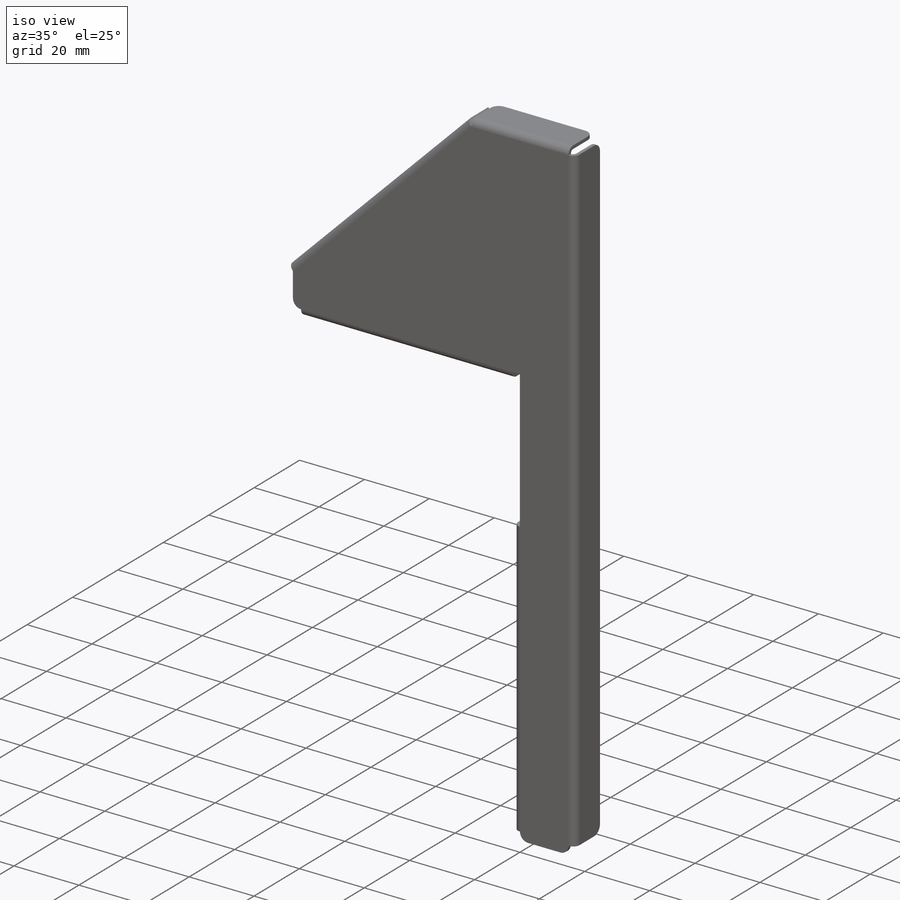
[diagram: iso view]
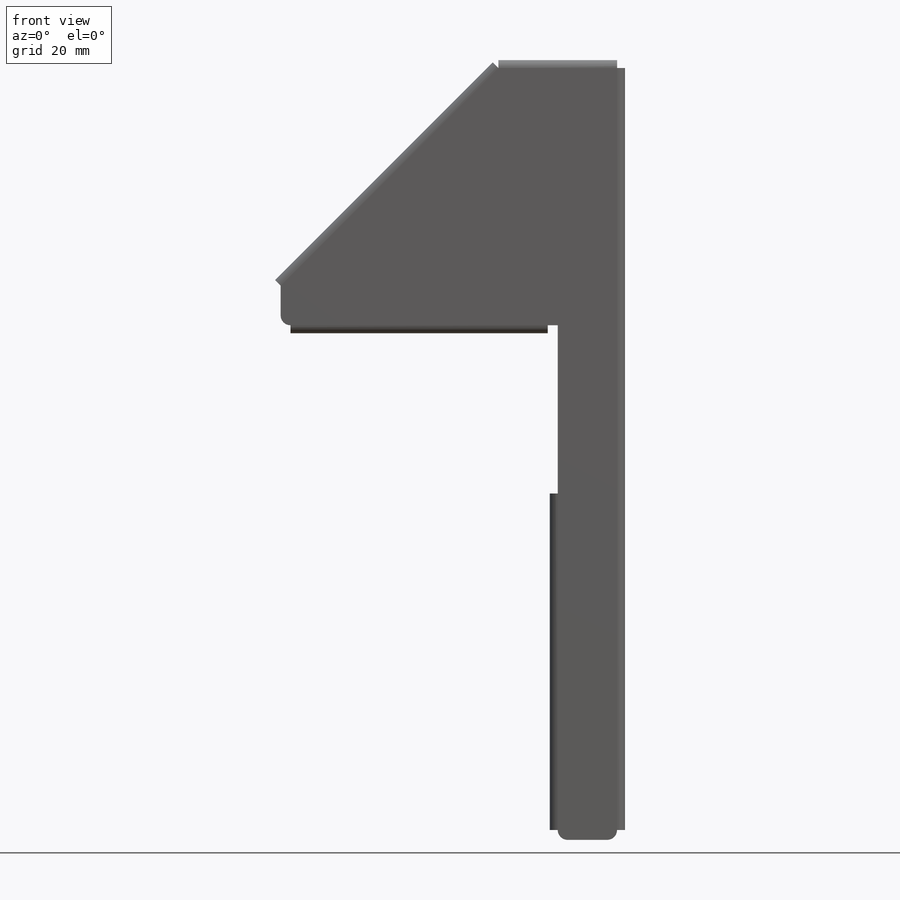
[diagram: front view]
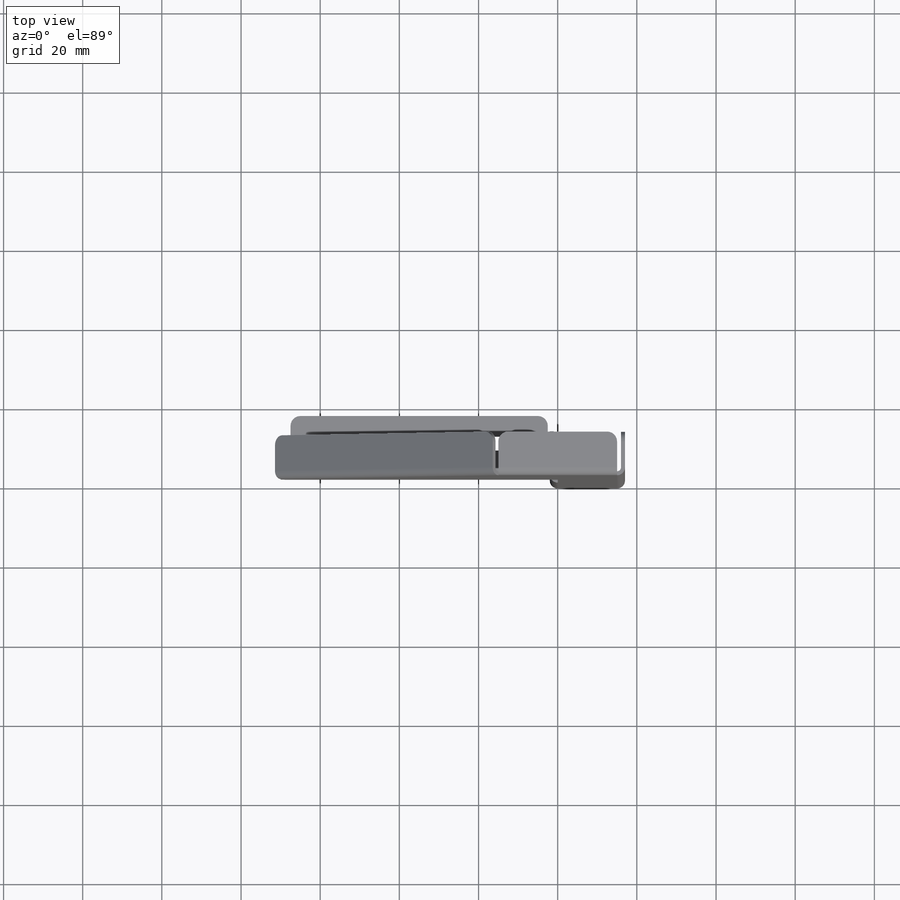
[diagram: top view]
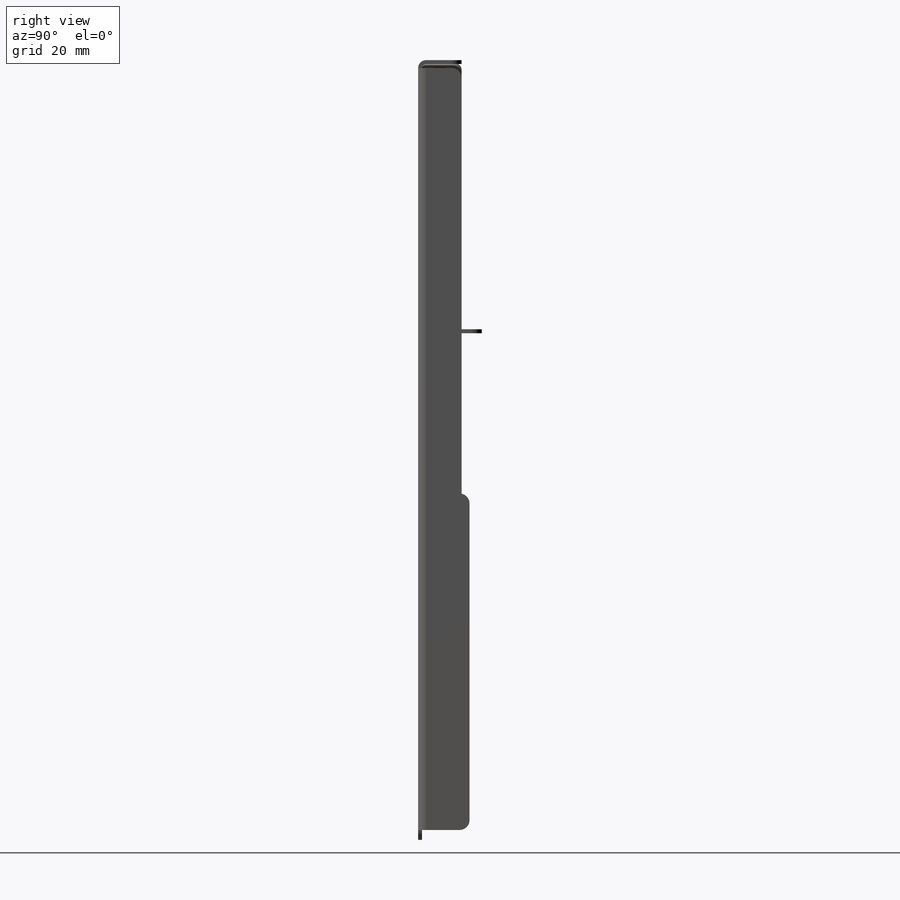
[diagram: right view]
SOLIDWORKS PART (.sldprt)
format: sldprt  version: not decoded by parser v0  size: 842,240 bytes
history: native  units: mm
features: sheet_metal_op x10, sketch x9, material x1, cut_extrude x1 + 5 further entries (+11 scaffold rows collapsed; 1 parser-record rows omitted)
feature tree (38):
  scaffold x11  (default folders/planes/origin — collapsed)
  material  "Plain Carbon Steel"
  sketch  "Sketch1"  dims[c1.D1=100.0mm c1.D2=15.0mm c2.D1=130.0mm c2.D3=70.0mm c2.D4=10.0mm c2.D5=75.0mm c3.D5=~32.831314deg c4.D5=~785.398163mm c4.D6=30.0mm]
  sheet_metal_op  "Sheet-Metal1"
  sheet_metal_op  "Base-Flange1"
  sketch  "Sketch11"  dims[c1.D1=2.5mm c1.D2=85.0mm c2.D1=1.0mm c2.D4=~1570.796327mm c2.D5=2.0 c2.D8=~0.028648deg c2.D9=~0.028648deg c3.D1=1.0mm c3.D2=~28.64789deg c3.D3=0.0deg c3.D6=10.0mm c3.D7=12.0mm]
  sheet_metal_op  "Edge-Flange3"
  sketch  "Sketch14"  dims[D1=2.5mm D2=2.5mm]
  sheet_metal_op  "EdgeBend3"
  sheet_metal_op  "Edge-Flange1"
  sketch  "Sketch6"  dims[c1.D1=10.0mm c1.D2=55.0mm c2.D1=2.5mm]
  sheet_metal_op  "EdgeBend1"
  sheet_metal_op  "Edge-Flange4"
  sketch  "Sketch18"
  sheet_metal_op  "EdgeBend4"
  sheet_metal_op  "Edge-Flange5"
  sketch  "Sketch21"
  sheet_metal_op  "EdgeBend5"
  sketch  "Sketch15"  dims[D1=7.0mm D2=3.5mm D3=50.0mm]
  cut_extrude  "Cut-Extrude1"  [1 undecoded]
  "Flat-Pattern1"
  sketch  "Bend-Lines1"
  sketch  "Bounding-Box1"
  "Flatten-<EdgeBend2>1"
  "Flatten-<EdgeBend3>1"
  "Flatten-<EdgeBend4>1"
  "Flatten-<EdgeBend5>1"
  parser-record x1  (decoder bookkeeping rows leaked as tree rows — omitted from the tree; the rows remain in map.json)
decode coverage: 5 of 20 modeling features carry decoded parameters; 5 rows unclassified (native names shown)
note: ~ marks probable driven/reference dimensions
note: 1 parameter value undecoded
note: suppression state not decoded; provenance and decode notes live in map.json
